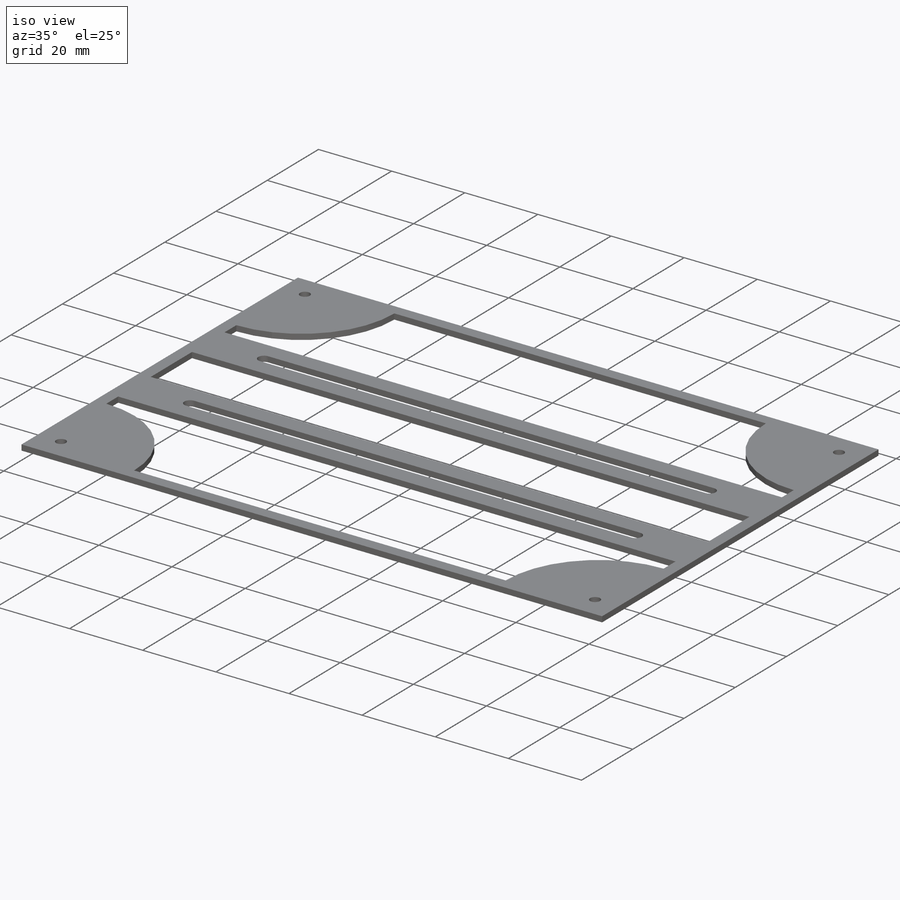
[diagram: iso view]
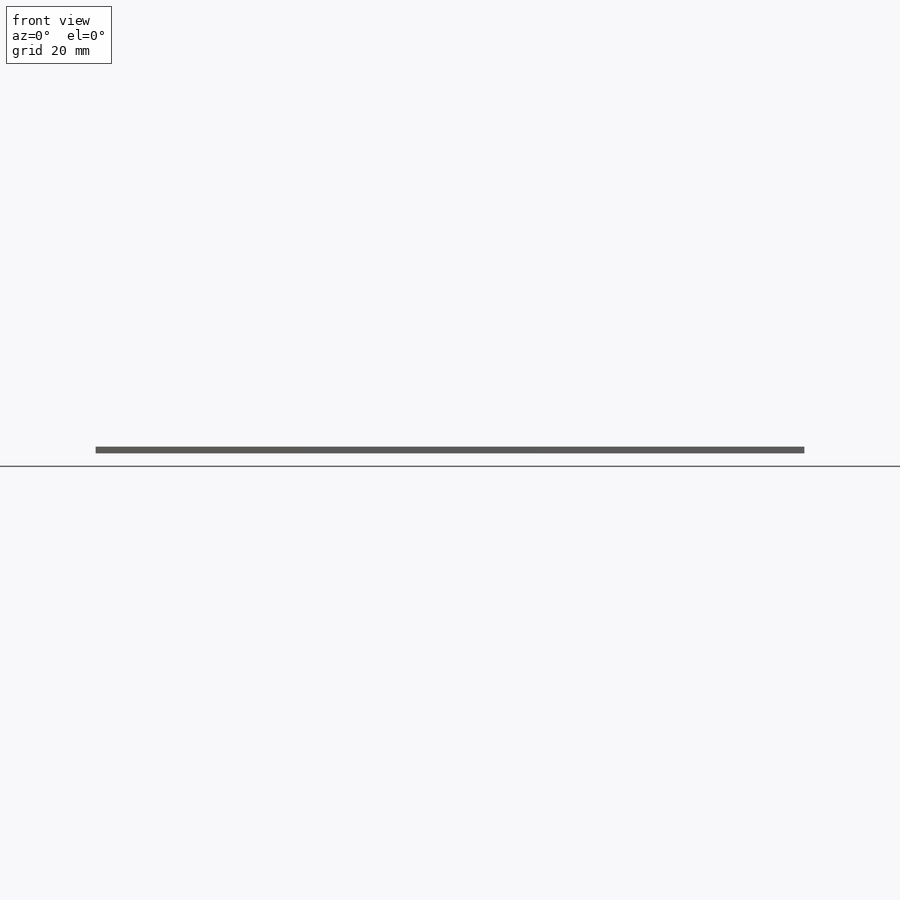
[diagram: front view]
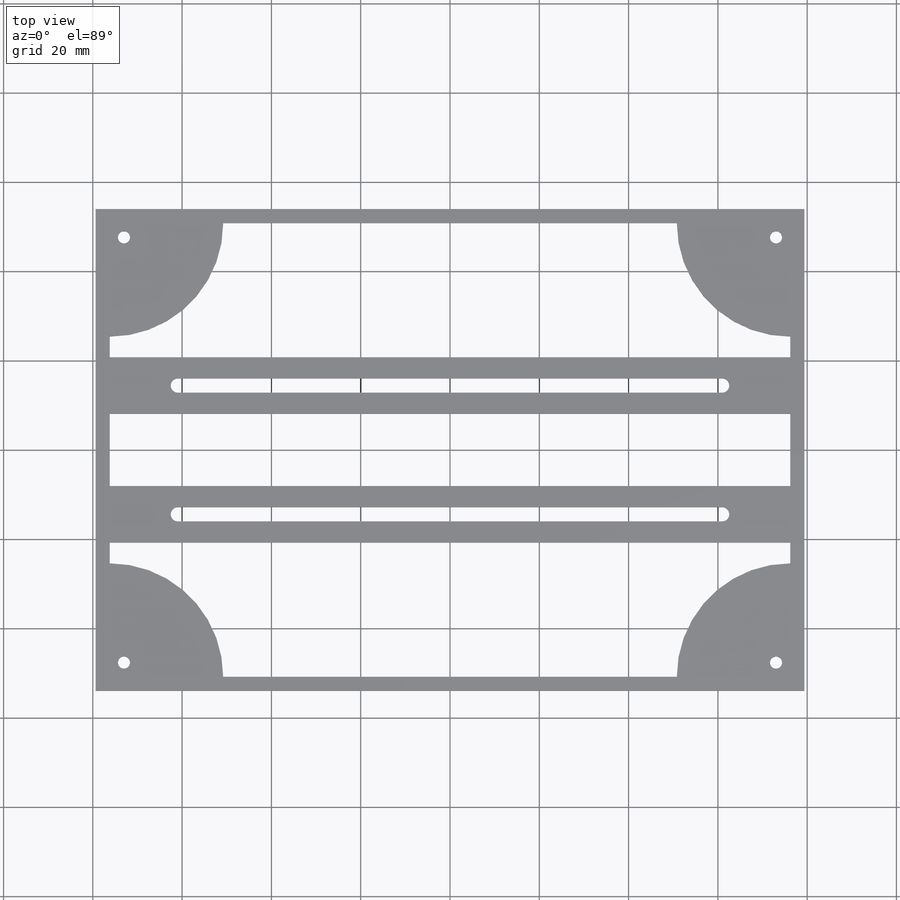
[diagram: top view]
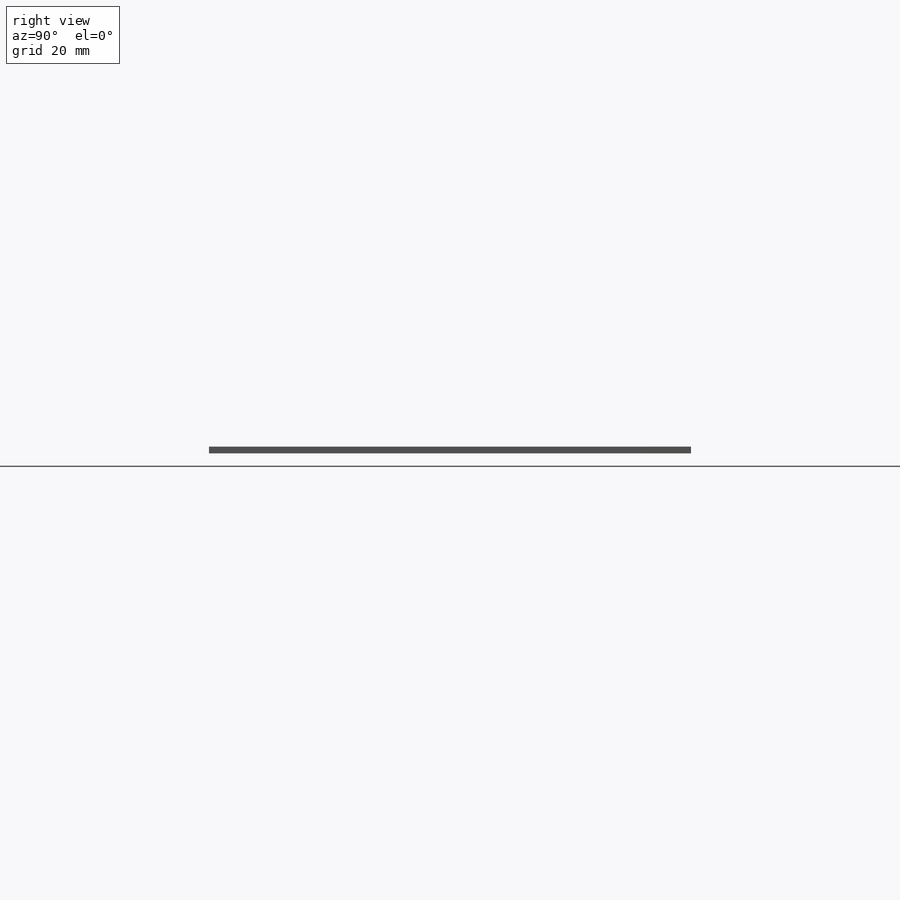
[diagram: right view]
SOLIDWORKS PART (.sldprt)
format: sldprt  version: not decoded by parser v0  size: 331,776 bytes
history: native  units: mm
features: sketch x6, thread x4, hole x2, material x1, extrude x1, cut_extrude x1 (+11 scaffold rows collapsed)
feature tree (26):
  scaffold x11  (default folders/planes/origin — collapsed)
  material  "Acrylic (Medium-high impact)"
  sketch  "Sketch1"  dims[c1.D6=27.94mm c1.D4=25.4mm c1.D1=107.95mm c1.D2=158.75mm c2.D4=30.48mm c2.D5=12.7mm c2.D6=3.175mm c2.D7=6.35mm c2.D3=3.175mm]
  extrude  "Boss-Extrude1"  Depth=1.524mm
  sketch  "Sketch3"  dims[D1=1.5875mm D2=6.35mm D3=121.92mm]
  cut_extrude  "Cut-Extrude1"  [1 undecoded]
  hole  "#6-32 Tapped Hole1"  Diameter=2.7051mm Depth=7.8105mm
  sketch  "Sketch4"  dims[D1=6.35mm D2=6.35mm]
  sketch  "Sketch5"  dims[Thru Tap Drill Dia.=2.7051mm Thru Tap Drill Depth=7.8105mm]
  thread  "Hole Thread1"  Diameter=3.5052mm  [1 undecoded]
  thread  "Hole Thread2"  Diameter=3.5052mm  [1 undecoded]
  thread  "Hole Thread3"  Diameter=3.5052mm  [1 undecoded]
  thread  "Hole Thread4"  Diameter=3.5052mm  [1 undecoded]
  hole  "#6-32 Tapped Hole2"  Diameter=2.7051mm Depth=1.524mm
  sketch  "Sketch6"  dims[D1=6.35mm D2=6.35mm]
  sketch  "Sketch7"  dims[Thru Tap Drill Dia.=2.7051mm Thru Tap Drill Depth=1.524mm]
decode coverage: 13 of 14 modeling features carry decoded parameters
note: 5 parameter values undecoded
note: suppression state not decoded; provenance and decode notes live in map.json
